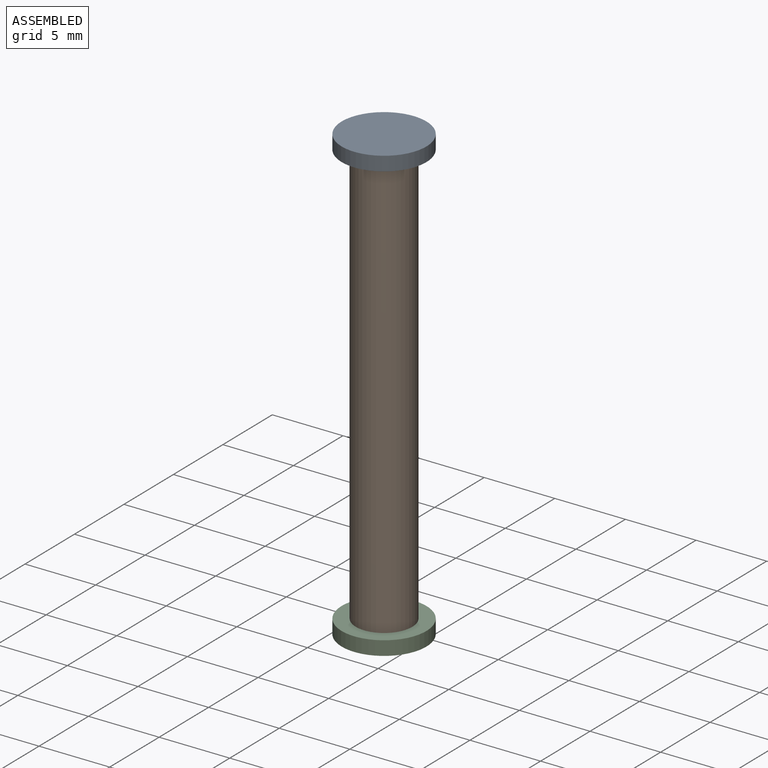
[diagram: assembled view]
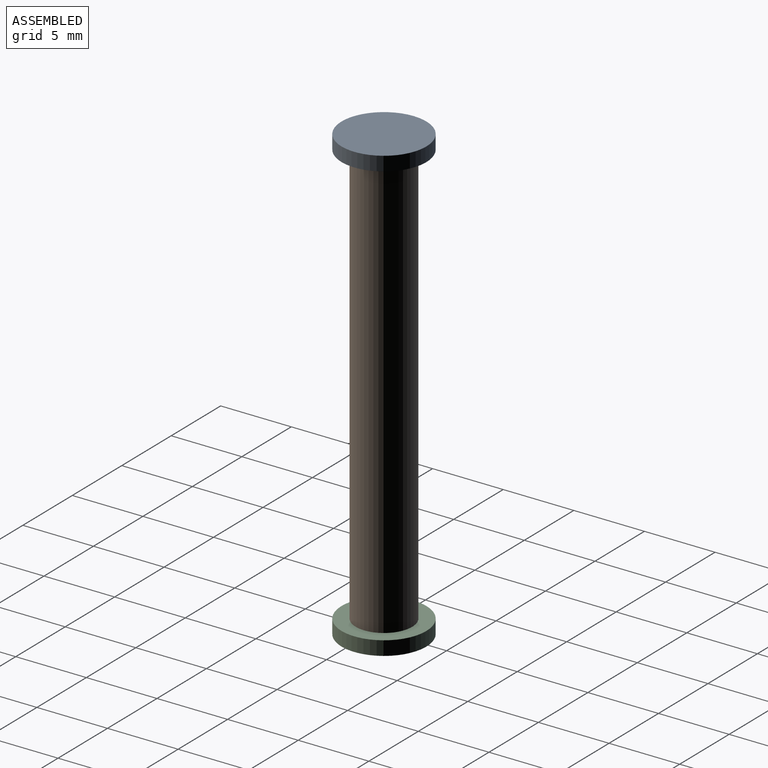
[diagram: assembled view, second angle]
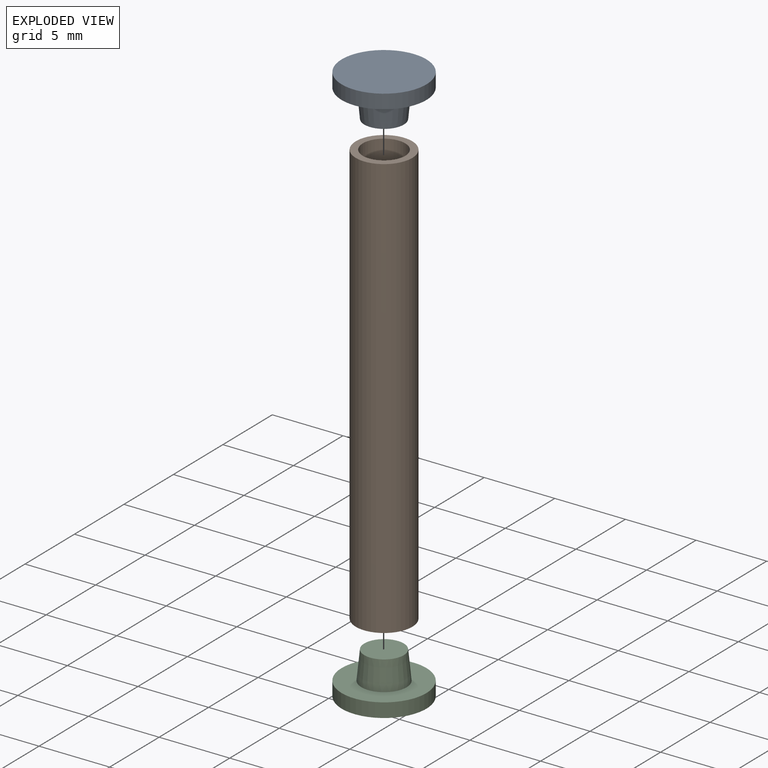
[diagram: exploded view]
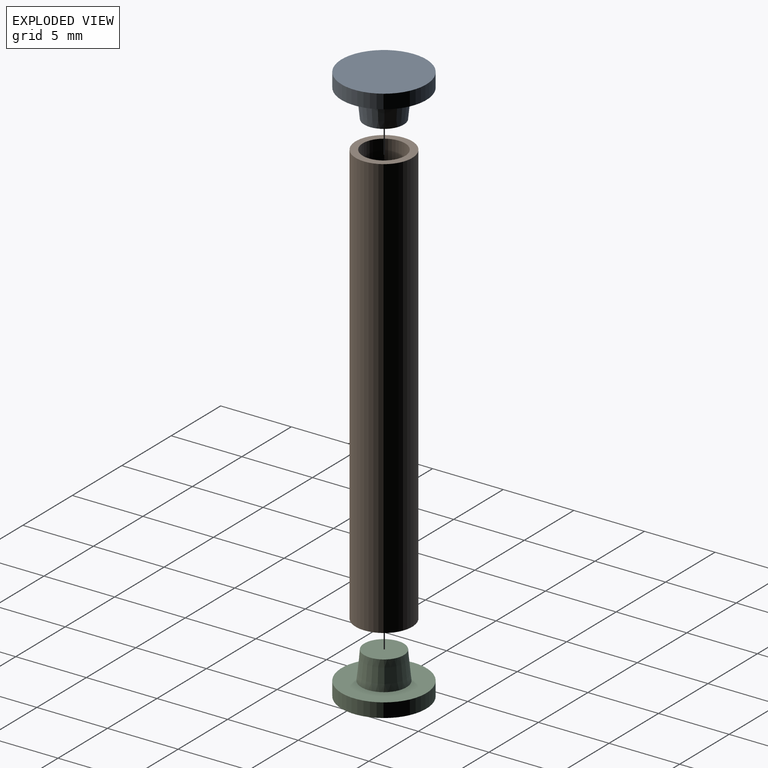
[diagram: exploded view, second angle]
ASSEMBLY  parts=3 mates=2
PART A: 5 faces, bbox 6x6x3 mm
  f0: plane 2.8x2.8mm, normal (0,0,1), area 6.2mm2, adj f1
  f1: cone r=1.4mm half-angle=5.7deg, axis (0,0,-1), area 18.9mm2, adj f0,f2
  f2: plane 6x6mm, normal (0,0,1), area 20.2mm2, adj f1,f3
  f3: cylinder r=3mm len=6mm, axis (0,0,-1), area 18.8mm2, adj f2,f4
  f4: plane 6x6mm, normal (0,0,-1), area 28.3mm2, adj f3
PART B: 4 faces, bbox 4x4x30 mm
  f0: cylinder r=1.5mm len=30mm, axis (0,0,-1), area 282.7mm2, adj f2,f3
  f1: cylinder r=2mm len=30mm, axis (0,0,-1), area 377mm2, adj f2,f3
  f2: plane 4x4mm, normal (0,0,1), area 5.5mm2, adj f0,f1
  f3: plane 4x4mm, normal (0,0,-1), area 5.5mm2, adj f0,f1
PART C: same geometry as A
PLACE A rot(axis=(1,0,0),180deg) t=(-36.93,-53.78,-18.19)mm
PLACE B rot(axis=(1,0,0),180deg) t=(-40.24,-82.78,-19.19)mm
PLACE C t=(-36.93,-53.78,-50.19)mm
MATE fastened A.f3 <-> B.f0  axis (0,0,-1) through (-36.93,-53.78,-19.19)mm
MATE fastened B.f0 <-> C.f3  axis (0,0,-1) through (-36.93,-53.78,-49.19)mm
